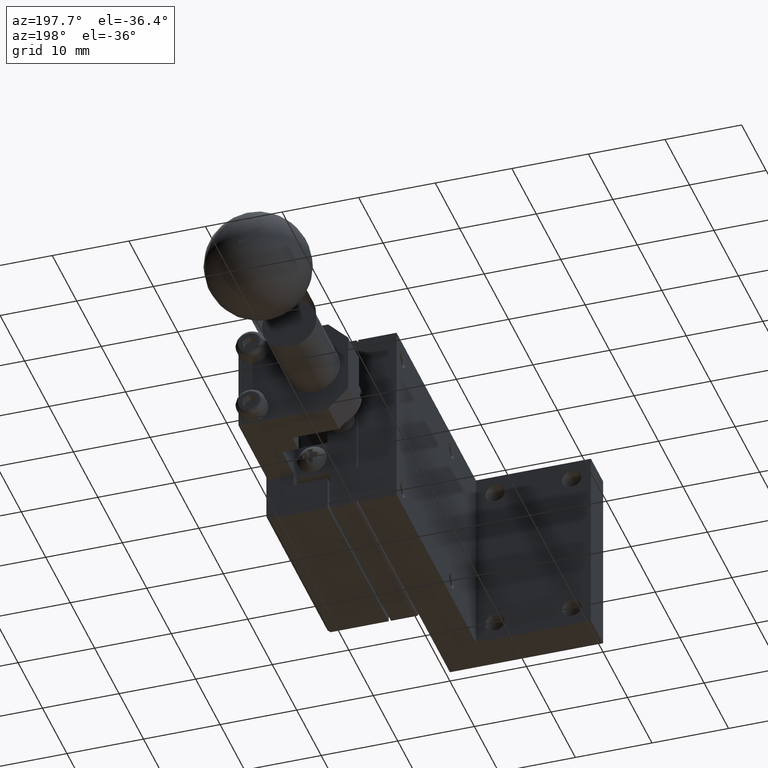
[diagram: clean part render]
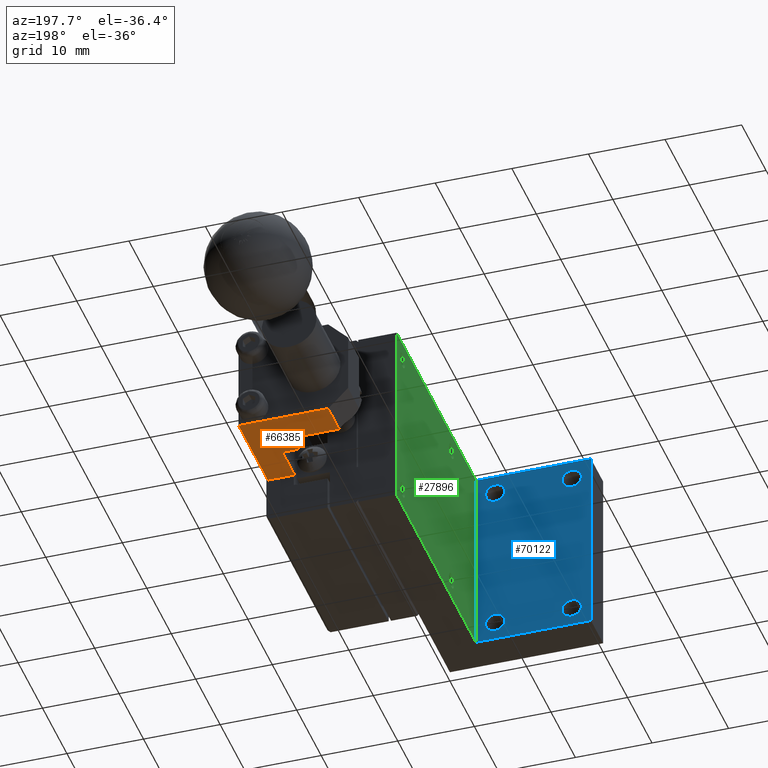
[diagram: same view with three faces highlighted in distinct colors, each labeled with its STEP entity id]
A machine part, auxiliary view with three faces highlighted in distinct colors.
Their STEP definitions:

[orange] entity #66385 — the highlighted planar face has unit normal (0, 0, 1).
#499 = DIRECTION ( 'NONE',  ( -1.000000000000000000, -0.000000000000000000, 0.000000000000000000 ) ) ;
#1244 = LINE ( 'NONE', #36817, #59055 ) ;
#2035 = VECTOR ( 'NONE', #65094, 1000.000000000000000 ) ;
#3561 = LINE ( 'NONE', #32140, #29624 ) ;
#4598 = ORIENTED_EDGE ( 'NONE', *, *, #76966, .F. ) ;
#4829 = VECTOR ( 'NONE', #12184, 1000.000000000000000 ) ;
#6132 = ORIENTED_EDGE ( 'NONE', *, *, #50304, .F. ) ;
#6874 = LINE ( 'NONE', #35441, #40598 ) ;
#7151 = VERTEX_POINT ( 'NONE', #76759 ) ;
#12184 = DIRECTION ( 'NONE',  ( 1.000000000000000000, 0.000000000000000000, -0.000000000000000000 ) ) ;
#13636 = LINE ( 'NONE', #35196, #68727 ) ;
#16323 = VERTEX_POINT ( 'NONE', #85491 ) ;
#17341 = ORIENTED_EDGE ( 'NONE', *, *, #69890, .F. ) ;
#18573 = FACE_OUTER_BOUND ( 'NONE', #85097, .T. ) ;
#18670 = CARTESIAN_POINT ( 'NONE',  ( 6.200000000000001066, 42.49999999999999289, -19.00000000000000000 ) ) ;
#20045 = CARTESIAN_POINT ( 'NONE',  ( 8.300000000000000711, 42.49999999999999289, -19.00000000000000000 ) ) ;
#21099 = DIRECTION ( 'NONE',  ( 0.000000000000000000, -1.000000000000000000, -0.000000000000000000 ) ) ;
#24689 = CARTESIAN_POINT ( 'NONE',  ( 11.80000000000001137, 49.50000000000000000, -19.00000000000000000 ) ) ;
#26119 = ORIENTED_EDGE ( 'NONE', *, *, #36152, .F. ) ;
#27595 = ORIENTED_EDGE ( 'NONE', *, *, #46070, .F. ) ;
#28109 = ORIENTED_EDGE ( 'NONE', *, *, #60868, .F. ) ;
#29624 = VECTOR ( 'NONE', #31678, 1000.000000000000000 ) ;
#31678 = DIRECTION ( 'NONE',  ( 1.000000000000000000, 0.000000000000000000, -0.000000000000000000 ) ) ;
#32140 = CARTESIAN_POINT ( 'NONE',  ( 11.80000000000001137, 42.49999999999999289, -19.00000000000000000 ) ) ;
#33392 = CARTESIAN_POINT ( 'NONE',  ( 6.200000000000001954, 45.00000000000000000, -19.00000000000000000 ) ) ;
#35196 = CARTESIAN_POINT ( 'NONE',  ( 6.200000000000001066, 49.50000000000000000, -19.00000000000000000 ) ) ;
#35441 = CARTESIAN_POINT ( 'NONE',  ( 0.09999999999999939493, 49.50000000000000000, -19.00000000000000000 ) ) ;
#36152 = EDGE_CURVE ( 'NONE', #36802, #69249, #3561, .T. ) ;
#36802 = VERTEX_POINT ( 'NONE', #18670 ) ;
#36817 = CARTESIAN_POINT ( 'NONE',  ( 11.80000000000001137, 45.00000000000000000, -19.00000000000000000 ) ) ;
#38710 = AXIS2_PLACEMENT_3D ( 'NONE', #24689, #53704, #38742 ) ;
#38742 = DIRECTION ( 'NONE',  ( 1.000000000000000000, 0.000000000000000000, -0.000000000000000000 ) ) ;
#39503 = EDGE_CURVE ( 'NONE', #79935, #36802, #13636, .T. ) ;
#40598 = VECTOR ( 'NONE', #84487, 1000.000000000000000 ) ;
#43886 = VERTEX_POINT ( 'NONE', #45107 ) ;
#43914 = VERTEX_POINT ( 'NONE', #88014 ) ;
#45018 = LINE ( 'NONE', #87013, #2035 ) ;
#45107 = CARTESIAN_POINT ( 'NONE',  ( 0.09999999999999939493, 45.00000000000000000, -19.00000000000000000 ) ) ;
#45701 = EDGE_CURVE ( 'NONE', #43914, #7151, #75737, .T. ) ;
#46070 = EDGE_CURVE ( 'NONE', #73065, #43886, #6874, .T. ) ;
#50304 = EDGE_CURVE ( 'NONE', #43886, #79935, #1244, .T. ) ;
#51033 = LINE ( 'NONE', #86052, #56738 ) ;
#53704 = DIRECTION ( 'NONE',  ( 0.000000000000000000, 0.000000000000000000, 1.000000000000000000 ) ) ;
#53828 = DIRECTION ( 'NONE',  ( -0.000000000000000000, -1.000000000000000000, 0.000000000000000000 ) ) ;
#55736 = CARTESIAN_POINT ( 'NONE',  ( 11.80000000000001137, 49.50000000000000000, -19.00000000000000000 ) ) ;
#56559 = ORIENTED_EDGE ( 'NONE', *, *, #80815, .F. ) ;
#56738 = VECTOR ( 'NONE', #21099, 1000.000000000000000 ) ;
#57115 = LINE ( 'NONE', #55736, #86251 ) ;
#59055 = VECTOR ( 'NONE', #79772, 1000.000000000000000 ) ;
#60868 = EDGE_CURVE ( 'NONE', #43914, #73065, #57115, .T. ) ;
#65094 = DIRECTION ( 'NONE',  ( 1.000000000000000000, 0.000000000000000000, -0.000000000000000000 ) ) ;
#66385 = ADVANCED_FACE ( 'NONE', ( #18573 ), #66776, .F. ) ;
#66776 = PLANE ( 'NONE',  #38710 ) ;
#68588 = ORIENTED_EDGE ( 'NONE', *, *, #39503, .F. ) ;
#68727 = VECTOR ( 'NONE', #70223, 1000.000000000000000 ) ;
#68906 = VECTOR ( 'NONE', #53828, 1000.000000000000000 ) ;
#68937 = CARTESIAN_POINT ( 'NONE',  ( 0.09999999999999939493, 49.50000000000000000, -19.00000000000000000 ) ) ;
#69249 = VERTEX_POINT ( 'NONE', #20045 ) ;
#69711 = CARTESIAN_POINT ( 'NONE',  ( 12.00000000000000000, 37.50000000000000711, -19.00000000000000000 ) ) ;
#69890 = EDGE_CURVE ( 'NONE', #69249, #80612, #51033, .T. ) ;
#70223 = DIRECTION ( 'NONE',  ( 0.000000000000000000, -1.000000000000000000, -0.000000000000000000 ) ) ;
#73065 = VERTEX_POINT ( 'NONE', #68937 ) ;
#75737 = LINE ( 'NONE', #76198, #68906 ) ;
#76198 = CARTESIAN_POINT ( 'NONE',  ( 11.80000000000001137, 49.50000000000000000, -19.00000000000000000 ) ) ;
#76759 = CARTESIAN_POINT ( 'NONE',  ( 11.80000000000001137, 37.50000000000000711, -19.00000000000000000 ) ) ;
#76966 = EDGE_CURVE ( 'NONE', #16323, #7151, #77186, .T. ) ;
#77186 = LINE ( 'NONE', #69711, #4829 ) ;
#79772 = DIRECTION ( 'NONE',  ( 1.000000000000000000, 0.000000000000000000, -0.000000000000000000 ) ) ;
#79838 = ORIENTED_EDGE ( 'NONE', *, *, #45701, .T. ) ;
#79935 = VERTEX_POINT ( 'NONE', #33392 ) ;
#80612 = VERTEX_POINT ( 'NONE', #80922 ) ;
#80815 = EDGE_CURVE ( 'NONE', #80612, #16323, #45018, .T. ) ;
#80922 = CARTESIAN_POINT ( 'NONE',  ( 8.300000000000000711, 37.50000000000000711, -19.00000000000000000 ) ) ;
#84487 = DIRECTION ( 'NONE',  ( 0.000000000000000000, -1.000000000000000000, -0.000000000000000000 ) ) ;
#85097 = EDGE_LOOP ( 'NONE', ( #27595, #28109, #79838, #4598, #56559, #17341, #26119, #68588, #6132 ) ) ;
#85491 = CARTESIAN_POINT ( 'NONE',  ( 8.400000000000000355, 37.50000000000000711, -19.00000000000000000 ) ) ;
#86052 = CARTESIAN_POINT ( 'NONE',  ( 8.300000000000000711, 49.50000000000000000, -19.00000000000000000 ) ) ;
#86251 = VECTOR ( 'NONE', #499, 1000.000000000000000 ) ;
#87013 = CARTESIAN_POINT ( 'NONE',  ( 11.80000000000001137, 37.50000000000000711, -19.00000000000000000 ) ) ;
#88014 = CARTESIAN_POINT ( 'NONE',  ( 11.80000000000001137, 49.50000000000000000, -19.00000000000000000 ) ) ;

[blue] entity #70122 — the highlighted planar face has unit normal (0, 1, 0).
#318 = DIRECTION ( 'NONE',  ( 0.000000000000000000, -0.000000000000000000, 1.000000000000000000 ) ) ;
#1008 = CARTESIAN_POINT ( 'NONE',  ( -20.00000000000000000, 5.000000000000000000, 0.000000000000000000 ) ) ;
#1333 = FACE_BOUND ( 'NONE', #4244, .T. ) ;
#1880 = VECTOR ( 'NONE', #318, 1000.000000000000000 ) ;
#2233 = PLANE ( 'NONE',  #56811 ) ;
#4244 = EDGE_LOOP ( 'NONE', ( #32604 ) ) ;
#4964 = EDGE_CURVE ( 'NONE', #54649, #54649, #10666, .T. ) ;
#6347 = EDGE_LOOP ( 'NONE', ( #23234 ) ) ;
#7223 = DIRECTION ( 'NONE',  ( 0.000000000000000000, -1.000000000000000000, 0.000000000000000000 ) ) ;
#7892 = FACE_OUTER_BOUND ( 'NONE', #18338, .T. ) ;
#8165 = EDGE_CURVE ( 'NONE', #50152, #18408, #43836, .T. ) ;
#9701 = FACE_BOUND ( 'NONE', #84026, .T. ) ;
#10417 = CIRCLE ( 'NONE', #82125, 1.249999999999999778 ) ;
#10666 = CIRCLE ( 'NONE', #18249, 1.250000000000001110 ) ;
#13410 = VERTEX_POINT ( 'NONE', #62987 ) ;
#17214 = AXIS2_PLACEMENT_3D ( 'NONE', #34849, #83895, #49348 ) ;
#18040 = EDGE_CURVE ( 'NONE', #13410, #13410, #70949, .T. ) ;
#18249 = AXIS2_PLACEMENT_3D ( 'NONE', #43938, #66301, #50494 ) ;
#18338 = EDGE_LOOP ( 'NONE', ( #35837, #42400, #60522, #43466 ) ) ;
#18408 = VERTEX_POINT ( 'NONE', #1008 ) ;
#20643 = ORIENTED_EDGE ( 'NONE', *, *, #39241, .T. ) ;
#22314 = CARTESIAN_POINT ( 'NONE',  ( -7.500000000000000000, 5.000000000000000000, -3.750000000000000000 ) ) ;
#23234 = ORIENTED_EDGE ( 'NONE', *, *, #4964, .T. ) ;
#24369 = EDGE_CURVE ( 'NONE', #59372, #50152, #27278, .T. ) ;
#26185 = CARTESIAN_POINT ( 'NONE',  ( -5.000000000000000000, 4.999999999999999112, -25.00000000000000000 ) ) ;
#27278 = LINE ( 'NONE', #57168, #41383 ) ;
#27917 = CARTESIAN_POINT ( 'NONE',  ( 0.000000000000000000, 5.000000000000000000, 0.000000000000000000 ) ) ;
#28752 = DIRECTION ( 'NONE',  ( 0.000000000000000000, 0.000000000000000000, -1.000000000000000000 ) ) ;
#30806 = DIRECTION ( 'NONE',  ( 0.000000000000000000, 1.000000000000000000, 0.000000000000000000 ) ) ;
#32574 = CARTESIAN_POINT ( 'NONE',  ( -17.50000000000000000, 5.000000000000000000, -3.750000000000000000 ) ) ;
#32604 = ORIENTED_EDGE ( 'NONE', *, *, #18040, .T. ) ;
#34676 = VERTEX_POINT ( 'NONE', #51411 ) ;
#34849 = CARTESIAN_POINT ( 'NONE',  ( -17.50000000000000000, 5.000000000000000000, -22.50000000000000000 ) ) ;
#35837 = ORIENTED_EDGE ( 'NONE', *, *, #24369, .T. ) ;
#36526 = VECTOR ( 'NONE', #77876, 1000.000000000000000 ) ;
#38287 = FACE_BOUND ( 'NONE', #63402, .T. ) ;
#39241 = EDGE_CURVE ( 'NONE', #49944, #49944, #10417, .T. ) ;
#41383 = VECTOR ( 'NONE', #50170, 1000.000000000000000 ) ;
#42400 = ORIENTED_EDGE ( 'NONE', *, *, #8165, .T. ) ;
#43320 = ORIENTED_EDGE ( 'NONE', *, *, #62525, .T. ) ;
#43466 = ORIENTED_EDGE ( 'NONE', *, *, #70018, .F. ) ;
#43836 = LINE ( 'NONE', #64349, #1880 ) ;
#43938 = CARTESIAN_POINT ( 'NONE',  ( -7.500000000000000000, 5.000000000000000000, -22.50000000000000000 ) ) ;
#48429 = CARTESIAN_POINT ( 'NONE',  ( -7.500000000000000000, 5.000000000000000000, -2.500000000000000000 ) ) ;
#49348 = DIRECTION ( 'NONE',  ( 0.000000000000000000, 0.000000000000000000, -1.000000000000000000 ) ) ;
#49944 = VERTEX_POINT ( 'NONE', #22314 ) ;
#50152 = VERTEX_POINT ( 'NONE', #84031 ) ;
#50170 = DIRECTION ( 'NONE',  ( -1.000000000000000000, -0.000000000000000000, 0.000000000000000000 ) ) ;
#50494 = DIRECTION ( 'NONE',  ( 0.000000000000000000, 0.000000000000000000, -1.000000000000000000 ) ) ;
#51411 = CARTESIAN_POINT ( 'NONE',  ( -5.000000000000000000, 4.999999999999999112, 0.000000000000000000 ) ) ;
#52404 = DIRECTION ( 'NONE',  ( 0.000000000000000000, 0.000000000000000000, 1.000000000000000000 ) ) ;
#54649 = VERTEX_POINT ( 'NONE', #63454 ) ;
#56811 = AXIS2_PLACEMENT_3D ( 'NONE', #81236, #30806, #58863 ) ;
#57168 = CARTESIAN_POINT ( 'NONE',  ( 0.000000000000000000, 5.000000000000000000, -25.00000000000000000 ) ) ;
#58863 = DIRECTION ( 'NONE',  ( 0.000000000000000000, -0.000000000000000000, 1.000000000000000000 ) ) ;
#59372 = VERTEX_POINT ( 'NONE', #26185 ) ;
#59674 = DIRECTION ( 'NONE',  ( 0.000000000000000000, 0.000000000000000000, -1.000000000000000000 ) ) ;
#60130 = VERTEX_POINT ( 'NONE', #32574 ) ;
#60522 = ORIENTED_EDGE ( 'NONE', *, *, #83372, .F. ) ;
#61237 = VECTOR ( 'NONE', #52404, 1000.000000000000000 ) ;
#62525 = EDGE_CURVE ( 'NONE', #60130, #60130, #74365, .T. ) ;
#62987 = CARTESIAN_POINT ( 'NONE',  ( -17.50000000000000000, 5.000000000000000000, -23.75000000000000000 ) ) ;
#63402 = EDGE_LOOP ( 'NONE', ( #43320 ) ) ;
#63454 = CARTESIAN_POINT ( 'NONE',  ( -7.500000000000000000, 5.000000000000000000, -23.75000000000000000 ) ) ;
#64349 = CARTESIAN_POINT ( 'NONE',  ( -20.00000000000000000, 5.000000000000000000, -25.00000000000000000 ) ) ;
#65843 = FACE_BOUND ( 'NONE', #6347, .T. ) ;
#66301 = DIRECTION ( 'NONE',  ( 0.000000000000000000, -1.000000000000000000, 0.000000000000000000 ) ) ;
#66674 = CARTESIAN_POINT ( 'NONE',  ( -17.50000000000000000, 5.000000000000000000, -2.500000000000000000 ) ) ;
#70018 = EDGE_CURVE ( 'NONE', #59372, #34676, #74308, .T. ) ;
#70122 = ADVANCED_FACE ( 'NONE', ( #7892, #9701, #65843, #1333, #38287 ), #2233, .T. ) ;
#70393 = LINE ( 'NONE', #27917, #36526 ) ;
#70949 = CIRCLE ( 'NONE', #17214, 1.250000000000001110 ) ;
#73658 = DIRECTION ( 'NONE',  ( 0.000000000000000000, -1.000000000000000000, 0.000000000000000000 ) ) ;
#74308 = LINE ( 'NONE', #87858, #61237 ) ;
#74365 = CIRCLE ( 'NONE', #78865, 1.249999999999999778 ) ;
#77876 = DIRECTION ( 'NONE',  ( -1.000000000000000000, -0.000000000000000000, 0.000000000000000000 ) ) ;
#78865 = AXIS2_PLACEMENT_3D ( 'NONE', #66674, #73658, #59674 ) ;
#81236 = CARTESIAN_POINT ( 'NONE',  ( -5.000000000000000000, 5.000000000000000000, -25.00000000000000000 ) ) ;
#82125 = AXIS2_PLACEMENT_3D ( 'NONE', #48429, #7223, #28752 ) ;
#83372 = EDGE_CURVE ( 'NONE', #34676, #18408, #70393, .T. ) ;
#83895 = DIRECTION ( 'NONE',  ( 0.000000000000000000, -1.000000000000000000, 0.000000000000000000 ) ) ;
#84026 = EDGE_LOOP ( 'NONE', ( #20643 ) ) ;
#84031 = CARTESIAN_POINT ( 'NONE',  ( -20.00000000000000000, 5.000000000000000000, -25.00000000000000000 ) ) ;
#87858 = CARTESIAN_POINT ( 'NONE',  ( -5.000000000000000000, 4.999999999999997335, -25.00000000000000000 ) ) ;

[green] entity #27896 — the highlighted planar face has unit normal (-1, 0, 0).
#524 = CIRCLE ( 'NONE', #87106, 1.000000000092313712 ) ;
#691 = FACE_BOUND ( 'NONE', #73226, .T. ) ;
#791 = CARTESIAN_POINT ( 'NONE',  ( -5.000000000052295945, 35.00000000000000000, -1.499999999907686288 ) ) ;
#6265 = ORIENTED_EDGE ( 'NONE', *, *, #80442, .T. ) ;
#8220 = ORIENTED_EDGE ( 'NONE', *, *, #36262, .F. ) ;
#8679 = DIRECTION ( 'NONE',  ( 0.000000000000000000, -1.000000000000000000, -0.000000000000000000 ) ) ;
#10412 = CARTESIAN_POINT ( 'NONE',  ( -5.000000000000000000, 37.50000000000000000, -25.00000000000000000 ) ) ;
#12385 = CARTESIAN_POINT ( 'NONE',  ( -4.999999999995452526, 35.00000000000000000, -21.50000000000318323 ) ) ;
#14237 = FACE_BOUND ( 'NONE', #17693, .T. ) ;
#14559 = ORIENTED_EDGE ( 'NONE', *, *, #80775, .T. ) ;
#14612 = VECTOR ( 'NONE', #8679, 1000.000000000000000 ) ;
#14705 = DIRECTION ( 'NONE',  ( 0.000000000000000000, 0.000000000000000000, 1.000000000000000000 ) ) ;
#15450 = AXIS2_PLACEMENT_3D ( 'NONE', #45684, #60134, #25540 ) ;
#17693 = EDGE_LOOP ( 'NONE', ( #59711 ) ) ;
#19933 = DIRECTION ( 'NONE',  ( 0.000000000000000000, -0.000000000000000000, 1.000000000000000000 ) ) ;
#21273 = FACE_BOUND ( 'NONE', #69833, .T. ) ;
#24398 = CARTESIAN_POINT ( 'NONE',  ( -5.000000000000000000, 37.50000000000000000, -25.00000000000000000 ) ) ;
#25540 = DIRECTION ( 'NONE',  ( 0.000000000000000000, 0.000000000000000000, 1.000000000000000000 ) ) ;
#26185 = CARTESIAN_POINT ( 'NONE',  ( -5.000000000000000000, 4.999999999999999112, -25.00000000000000000 ) ) ;
#27406 = CARTESIAN_POINT ( 'NONE',  ( -5.000000000052295945, 15.00000000000000000, -1.499999999907686288 ) ) ;
#27896 = ADVANCED_FACE ( 'NONE', ( #64729, #36712, #21273, #691, #14237 ), #88958, .T. ) ;
#29392 = CARTESIAN_POINT ( 'NONE',  ( -5.000000000000000000, 0.000000000000000000, 0.000000000000000000 ) ) ;
#29702 = DIRECTION ( 'NONE',  ( 1.000000000000000000, -0.000000000000000000, -0.000000000000000000 ) ) ;
#33473 = CIRCLE ( 'NONE', #15450, 0.9999999999968158804 ) ;
#33475 = EDGE_CURVE ( 'NONE', #43379, #43379, #47453, .T. ) ;
#33488 = VERTEX_POINT ( 'NONE', #27406 ) ;
#33855 = DIRECTION ( 'NONE',  ( 1.000000000000000000, -0.000000000000000000, -0.000000000000000000 ) ) ;
#34028 = AXIS2_PLACEMENT_3D ( 'NONE', #50757, #29702, #14705 ) ;
#34311 = CARTESIAN_POINT ( 'NONE',  ( -5.000000000052295945, 15.00000000000000000, -2.500000000000000000 ) ) ;
#34676 = VERTEX_POINT ( 'NONE', #51411 ) ;
#35451 = EDGE_CURVE ( 'NONE', #85676, #59372, #44281, .T. ) ;
#36262 = EDGE_CURVE ( 'NONE', #85676, #55217, #70389, .T. ) ;
#36712 = FACE_BOUND ( 'NONE', #40073, .T. ) ;
#37253 = CARTESIAN_POINT ( 'NONE',  ( -5.000000000000000000, 0.000000000000000000, -25.00000000000000000 ) ) ;
#37695 = ORIENTED_EDGE ( 'NONE', *, *, #33475, .T. ) ;
#39217 = DIRECTION ( 'NONE',  ( 0.000000000000000000, 0.000000000000000000, 1.000000000000000000 ) ) ;
#40073 = EDGE_LOOP ( 'NONE', ( #14559 ) ) ;
#43379 = VERTEX_POINT ( 'NONE', #791 ) ;
#43384 = EDGE_CURVE ( 'NONE', #56942, #56942, #85269, .T. ) ;
#44281 = LINE ( 'NONE', #37253, #14612 ) ;
#45602 = ORIENTED_EDGE ( 'NONE', *, *, #81498, .F. ) ;
#45684 = CARTESIAN_POINT ( 'NONE',  ( -4.999999999995452526, 35.00000000000000000, -22.50000000000000000 ) ) ;
#46093 = ORIENTED_EDGE ( 'NONE', *, *, #70018, .T. ) ;
#47453 = CIRCLE ( 'NONE', #34028, 1.000000000092313712 ) ;
#48550 = DIRECTION ( 'NONE',  ( 1.000000000000000000, -0.000000000000000000, -0.000000000000000000 ) ) ;
#50535 = VECTOR ( 'NONE', #19933, 1000.000000000000000 ) ;
#50757 = CARTESIAN_POINT ( 'NONE',  ( -5.000000000052295945, 35.00000000000000000, -2.500000000000000000 ) ) ;
#51238 = EDGE_LOOP ( 'NONE', ( #59838, #46093, #45602, #8220 ) ) ;
#51411 = CARTESIAN_POINT ( 'NONE',  ( -5.000000000000000000, 4.999999999999999112, 0.000000000000000000 ) ) ;
#52404 = DIRECTION ( 'NONE',  ( 0.000000000000000000, 0.000000000000000000, 1.000000000000000000 ) ) ;
#53050 = DIRECTION ( 'NONE',  ( 0.000000000000000000, 0.000000000000000000, 1.000000000000000000 ) ) ;
#55217 = VERTEX_POINT ( 'NONE', #85709 ) ;
#55561 = CARTESIAN_POINT ( 'NONE',  ( -4.999999999995452526, 15.00000000000000000, -22.50000000000000000 ) ) ;
#56186 = AXIS2_PLACEMENT_3D ( 'NONE', #10412, #59118, #53050 ) ;
#56942 = VERTEX_POINT ( 'NONE', #87208 ) ;
#59118 = DIRECTION ( 'NONE',  ( -1.000000000000000000, 0.000000000000000000, 0.000000000000000000 ) ) ;
#59372 = VERTEX_POINT ( 'NONE', #26185 ) ;
#59711 = ORIENTED_EDGE ( 'NONE', *, *, #43384, .T. ) ;
#59838 = ORIENTED_EDGE ( 'NONE', *, *, #35451, .T. ) ;
#60134 = DIRECTION ( 'NONE',  ( 1.000000000000000000, -0.000000000000000000, -0.000000000000000000 ) ) ;
#61237 = VECTOR ( 'NONE', #52404, 1000.000000000000000 ) ;
#64729 = FACE_OUTER_BOUND ( 'NONE', #51238, .T. ) ;
#64871 = DIRECTION ( 'NONE',  ( 0.000000000000000000, -1.000000000000000000, -0.000000000000000000 ) ) ;
#69833 = EDGE_LOOP ( 'NONE', ( #37695 ) ) ;
#70018 = EDGE_CURVE ( 'NONE', #59372, #34676, #74308, .T. ) ;
#70340 = VERTEX_POINT ( 'NONE', #12385 ) ;
#70389 = LINE ( 'NONE', #91407, #50535 ) ;
#73226 = EDGE_LOOP ( 'NONE', ( #6265 ) ) ;
#74308 = LINE ( 'NONE', #87858, #61237 ) ;
#76810 = DIRECTION ( 'NONE',  ( 0.000000000000000000, 0.000000000000000000, 1.000000000000000000 ) ) ;
#80442 = EDGE_CURVE ( 'NONE', #70340, #70340, #33473, .T. ) ;
#80775 = EDGE_CURVE ( 'NONE', #33488, #33488, #524, .T. ) ;
#81498 = EDGE_CURVE ( 'NONE', #55217, #34676, #86364, .T. ) ;
#85269 = CIRCLE ( 'NONE', #88232, 0.9999999999968158804 ) ;
#85676 = VERTEX_POINT ( 'NONE', #24398 ) ;
#85709 = CARTESIAN_POINT ( 'NONE',  ( -5.000000000000000000, 37.50000000000000000, 0.000000000000000000 ) ) ;
#86364 = LINE ( 'NONE', #29392, #87168 ) ;
#87106 = AXIS2_PLACEMENT_3D ( 'NONE', #34311, #33855, #76810 ) ;
#87168 = VECTOR ( 'NONE', #64871, 1000.000000000000000 ) ;
#87208 = CARTESIAN_POINT ( 'NONE',  ( -4.999999999995452526, 15.00000000000000000, -21.50000000000318323 ) ) ;
#87858 = CARTESIAN_POINT ( 'NONE',  ( -5.000000000000000000, 4.999999999999997335, -25.00000000000000000 ) ) ;
#88232 = AXIS2_PLACEMENT_3D ( 'NONE', #55561, #48550, #39217 ) ;
#88958 = PLANE ( 'NONE',  #56186 ) ;
#91407 = CARTESIAN_POINT ( 'NONE',  ( -5.000000000000000000, 37.50000000000000000, -25.00000000000000000 ) ) ;